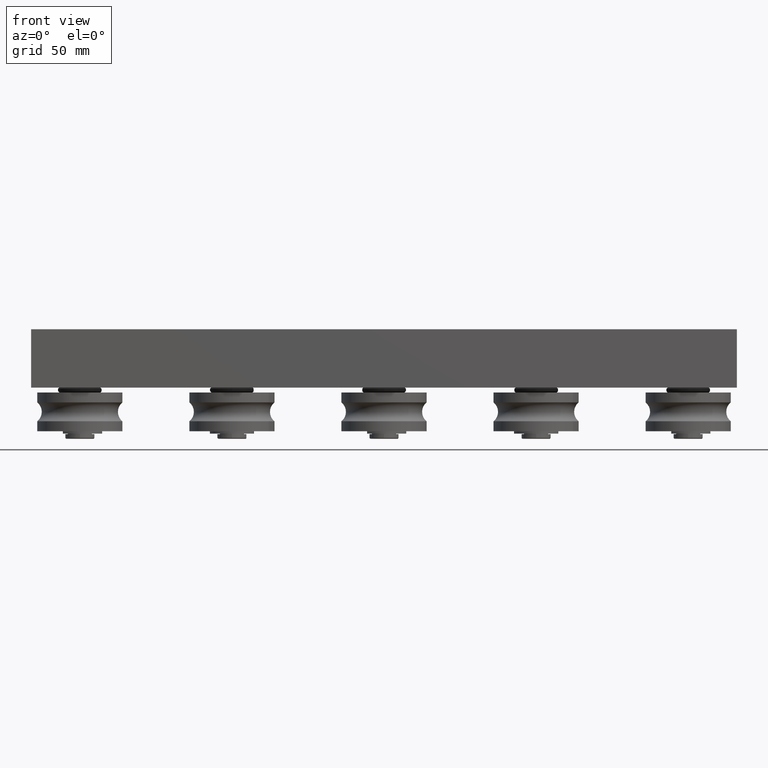
[diagram: clean part render]
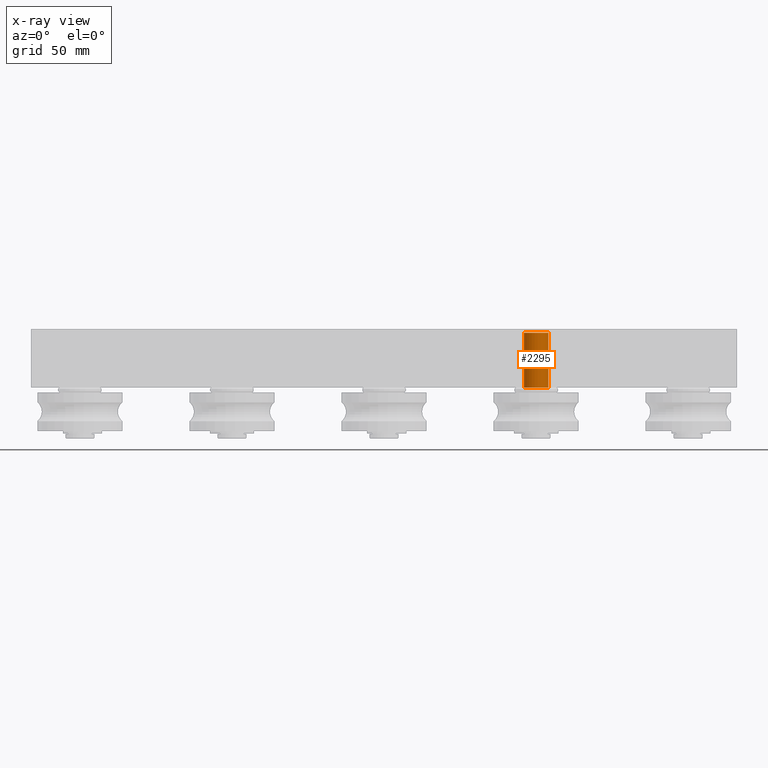
[diagram: x-ray — body ghosted, one internal face saturated and labeled with its STEP entity id]
A machine part, front view, then the same camera in x-ray: the body is ghosted and one INTERNAL B-rep face — a face not visible from any outside direction — is saturated and labeled: STEP entity #2295.
In plain terms, the highlighted cylindrical surface (bore or boss wall) has radius 5 mm, axis along (0, 0, 1).
Its self-contained STEP definition (entity closure, byte-faithful):
#342=FACE_OUTER_BOUND('',#518,.T.);
#518=EDGE_LOOP('',(#1769,#1770,#1771,#1772));
#694=LINE('',#3908,#836);
#836=VECTOR('',#3165,5.);
#969=CIRCLE('',#2693,5.);
#970=CIRCLE('',#2695,5.);
#1133=VERTEX_POINT('',#3899);
#1134=VERTEX_POINT('',#3902);
#1365=EDGE_CURVE('',#1133,#1133,#969,.T.);
#1366=EDGE_CURVE('',#1134,#1134,#970,.T.);
#1369=EDGE_CURVE('',#1134,#1133,#694,.T.);
#1769=ORIENTED_EDGE('',*,*,#1366,.F.);
#1770=ORIENTED_EDGE('',*,*,#1369,.T.);
#1771=ORIENTED_EDGE('',*,*,#1365,.F.);
#1772=ORIENTED_EDGE('',*,*,#1369,.F.);
#2213=CYLINDRICAL_SURFACE('',#2697,5.);
#2295=ADVANCED_FACE('',(#342),#2213,.T.);
#2693=AXIS2_PLACEMENT_3D('',#3900,#3154,#3155);
#2695=AXIS2_PLACEMENT_3D('',#3903,#3158,#3159);
#2697=AXIS2_PLACEMENT_3D('',#3907,#3163,#3164);
#3154=DIRECTION('center_axis',(1.,0.,0.));
#3155=DIRECTION('ref_axis',(0.,0.,-1.));
#3158=DIRECTION('center_axis',(-1.,0.,0.));
#3159=DIRECTION('ref_axis',(0.,0.,-1.));
#3163=DIRECTION('center_axis',(-1.,0.,0.));
#3164=DIRECTION('ref_axis',(0.,0.,-1.));
#3165=DIRECTION('',(1.,0.,0.));
#3899=CARTESIAN_POINT('',(-2.75545529808154E-16,0.750000000000001,5.));
#3900=CARTESIAN_POINT('Origin',(-2.75545529808154E-16,0.75,0.));
#3902=CARTESIAN_POINT('',(-22.5,0.750000000000001,5.));
#3903=CARTESIAN_POINT('Origin',(-22.5,0.75,0.));
#3907=CARTESIAN_POINT('Origin',(-2.75545529808154E-16,0.75,0.));
#3908=CARTESIAN_POINT('',(-2.75545529808154E-16,0.750000000000001,5.));